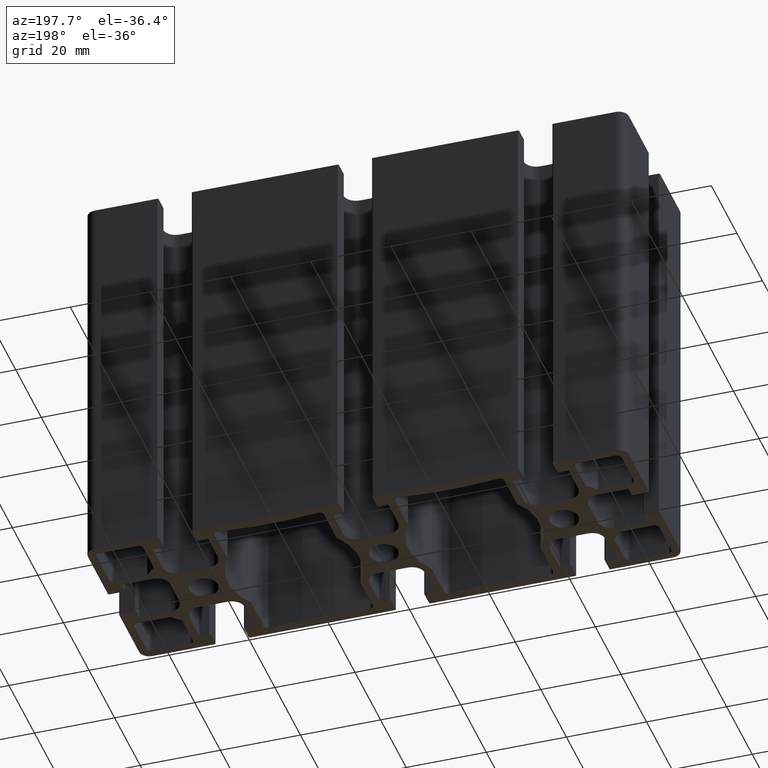
[diagram: clean part render]
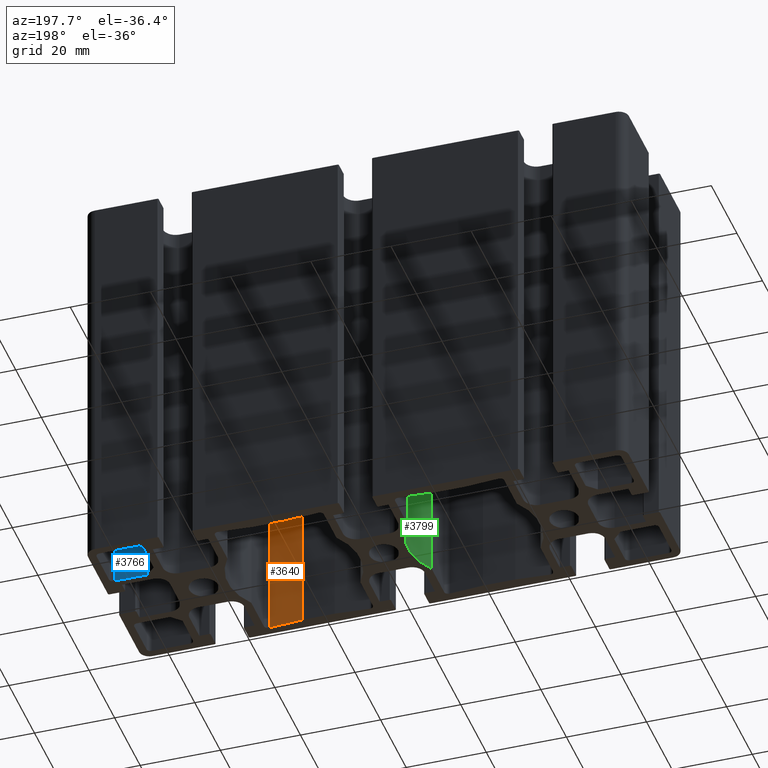
[diagram: same view with three faces highlighted in distinct colors, each labeled with its STEP entity id]
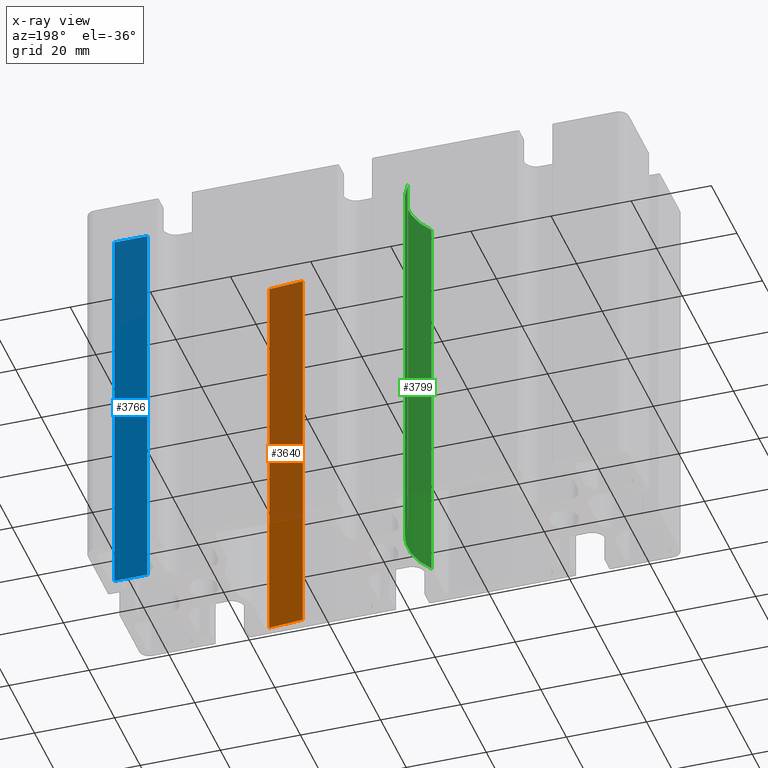
[diagram: x-ray of the same camera — body ghosted, the three highlighted faces saturated]
A machine part, auxiliary view with three faces highlighted in distinct colors.
The next image is the same camera in x-ray (body ghosted, the three faces saturated) — at least one of them is partly hidden behind the body in this view.
Their STEP definitions:

[orange] entity #3640 — the highlighted planar face has unit normal (-0.0767, -0.9971, 0).
#283=FACE_OUTER_BOUND('',#472,.T.);
#472=EDGE_LOOP('',(#2444,#2445,#2446,#2447));
#694=LINE('',#5327,#1094);
#695=LINE('',#5330,#1095);
#696=LINE('',#5332,#1096);
#697=LINE('',#5333,#1097);
#1094=VECTOR('',#4228,100.);
#1095=VECTOR('',#4231,8.54847544709788);
#1096=VECTOR('',#4232,8.54847544709788);
#1097=VECTOR('',#4233,100.);
#1492=VERTEX_POINT('',#5323);
#1493=VERTEX_POINT('',#5325);
#1494=VERTEX_POINT('',#5329);
#1495=VERTEX_POINT('',#5331);
#1876=EDGE_CURVE('',#1493,#1492,#694,.T.);
#1877=EDGE_CURVE('',#1492,#1494,#695,.T.);
#1878=EDGE_CURVE('',#1495,#1493,#696,.T.);
#1879=EDGE_CURVE('',#1495,#1494,#697,.T.);
#2444=ORIENTED_EDGE('',*,*,#1877,.F.);
#2445=ORIENTED_EDGE('',*,*,#1876,.F.);
#2446=ORIENTED_EDGE('',*,*,#1878,.F.);
#2447=ORIENTED_EDGE('',*,*,#1879,.T.);
#3526=PLANE('',#3839);
#3640=ADVANCED_FACE('',(#283),#3526,.F.);
#3839=AXIS2_PLACEMENT_3D('',#5328,#4229,#4230);
#4228=DIRECTION('',(0.,0.,1.));
#4229=DIRECTION('center_axis',(-0.0767190281268195,-0.99705275222692,0.));
#4230=DIRECTION('ref_axis',(0.,0.,-1.));
#4231=DIRECTION('',(-0.99705275222692,0.0767190281268195,0.));
#4232=DIRECTION('',(0.99705275222692,-0.0767190281268195,0.));
#4233=DIRECTION('',(0.,0.,1.));
#5323=CARTESIAN_POINT('',(35.0232809718832,-20.1558307282574,100.));
#5325=CARTESIAN_POINT('',(35.0232809718832,-20.1558307282574,0.));
#5327=CARTESIAN_POINT('',(35.0232809718832,-20.1558307282574,0.));
#5328=CARTESIAN_POINT('Origin',(35.0232809718832,-20.1558307282574,0.));
#5329=CARTESIAN_POINT('',(26.50000000001,-19.49999999999,100.));
#5330=CARTESIAN_POINT('',(16.8438215069739,-18.7569975582935,100.));
#5331=CARTESIAN_POINT('',(26.50000000001,-19.49999999999,0.));
#5332=CARTESIAN_POINT('',(16.8438215069739,-18.7569975582935,0.));
#5333=CARTESIAN_POINT('',(26.50000000001,-19.49999999999,0.));

[blue] entity #3766 — the highlighted planar face has unit normal (0, -1, 0).
#409=FACE_OUTER_BOUND('',#601,.T.);
#601=EDGE_LOOP('',(#2942,#2943,#2944,#2945));
#959=LINE('',#6104,#1359);
#960=LINE('',#6107,#1360);
#961=LINE('',#6109,#1361);
#962=LINE('',#6110,#1362);
#1359=VECTOR('',#4981,100.);
#1360=VECTOR('',#4984,8.26654762208439);
#1361=VECTOR('',#4985,8.26654762208439);
#1362=VECTOR('',#4986,100.);
#1760=VERTEX_POINT('',#6100);
#1761=VERTEX_POINT('',#6102);
#1762=VERTEX_POINT('',#6106);
#1763=VERTEX_POINT('',#6108);
#2259=EDGE_CURVE('',#1761,#1760,#959,.T.);
#2260=EDGE_CURVE('',#1760,#1762,#960,.T.);
#2261=EDGE_CURVE('',#1763,#1761,#961,.T.);
#2262=EDGE_CURVE('',#1763,#1762,#962,.T.);
#2942=ORIENTED_EDGE('',*,*,#2260,.F.);
#2943=ORIENTED_EDGE('',*,*,#2259,.F.);
#2944=ORIENTED_EDGE('',*,*,#2261,.F.);
#2945=ORIENTED_EDGE('',*,*,#2262,.T.);
#3593=PLANE('',#4083);
#3766=ADVANCED_FACE('',(#409),#3593,.F.);
#4083=AXIS2_PLACEMENT_3D('',#6105,#4982,#4983);
#4981=DIRECTION('',(0.,0.,1.));
#4982=DIRECTION('center_axis',(0.,-1.,0.));
#4983=DIRECTION('ref_axis',(0.,0.,-1.));
#4984=DIRECTION('',(-1.,0.,0.));
#4985=DIRECTION('',(1.,0.,0.));
#4986=DIRECTION('',(0.,0.,1.));
#6100=CARTESIAN_POINT('',(64.49999999999,8.89999999999002,100.));
#6102=CARTESIAN_POINT('',(64.49999999999,8.89999999999002,0.));
#6104=CARTESIAN_POINT('',(64.49999999999,8.89999999999002,0.));
#6105=CARTESIAN_POINT('Origin',(64.49999999999,8.89999999999002,0.));
#6106=CARTESIAN_POINT('',(56.2334523779056,8.89999999999002,100.));
#6107=CARTESIAN_POINT('',(32.249999999995,8.89999999999002,100.));
#6108=CARTESIAN_POINT('',(56.2334523779056,8.89999999999002,0.));
#6109=CARTESIAN_POINT('',(32.249999999995,8.89999999999002,0.));
#6110=CARTESIAN_POINT('',(56.2334523779056,8.89999999999002,0.));

[green] entity #3799 — the highlighted cylindrical surface (partial cylindrical patch) has radius 16.5 mm, axis along (0, 0, 1).
#184=CIRCLE('',#4139,16.5);
#185=CIRCLE('',#4140,16.5);
#268=CYLINDRICAL_SURFACE('',#4138,16.5);
#442=FACE_OUTER_BOUND('',#634,.T.);
#634=EDGE_LOOP('',(#3074,#3075,#3076,#3077));
#1035=LINE('',#6301,#1435);
#1037=LINE('',#6307,#1437);
#1435=VECTOR('',#5167,100.);
#1437=VECTOR('',#5173,100.);
#1826=VERTEX_POINT('',#6298);
#1827=VERTEX_POINT('',#6300);
#1828=VERTEX_POINT('',#6304);
#1829=VERTEX_POINT('',#6306);
#2357=EDGE_CURVE('',#1827,#1826,#1035,.T.);
#2359=EDGE_CURVE('',#1828,#1826,#184,.T.);
#2360=EDGE_CURVE('',#1829,#1828,#1037,.T.);
#2361=EDGE_CURVE('',#1827,#1829,#185,.T.);
#3074=ORIENTED_EDGE('',*,*,#2359,.F.);
#3075=ORIENTED_EDGE('',*,*,#2360,.F.);
#3076=ORIENTED_EDGE('',*,*,#2361,.F.);
#3077=ORIENTED_EDGE('',*,*,#2357,.T.);
#3799=ADVANCED_FACE('',(#442),#268,.F.);
#4138=AXIS2_PLACEMENT_3D('',#6303,#5169,#5170);
#4139=AXIS2_PLACEMENT_3D('',#6305,#5171,#5172);
#4140=AXIS2_PLACEMENT_3D('',#6308,#5174,#5175);
#5167=DIRECTION('',(0.,0.,1.));
#5169=DIRECTION('center_axis',(0.,0.,1.));
#5170=DIRECTION('ref_axis',(0.824242424242425,-0.56623707586043,0.));
#5171=DIRECTION('center_axis',(0.,0.,-1.));
#5172=DIRECTION('ref_axis',(0.824242424242425,-0.56623707586043,0.));
#5173=DIRECTION('',(0.,0.,1.));
#5174=DIRECTION('center_axis',(0.,0.,1.));
#5175=DIRECTION('ref_axis',(0.824242424242425,-0.56623707586043,0.));
#6298=CARTESIAN_POINT('',(-8.90000000000998,-9.34291175169711,100.));
#6300=CARTESIAN_POINT('',(-8.90000000000998,-9.34291175169711,0.));
#6301=CARTESIAN_POINT('',(-8.90000000000998,-9.34291175169711,0.));
#6303=CARTESIAN_POINT('Origin',(-22.50000000001,-2.7433184895085E-15,0.));
#6304=CARTESIAN_POINT('',(-8.90000000000997,9.3429117516971,100.));
#6305=CARTESIAN_POINT('Origin',(-22.50000000001,-2.7433184895085E-15,100.));
#6306=CARTESIAN_POINT('',(-8.90000000000997,9.3429117516971,0.));
#6307=CARTESIAN_POINT('',(-8.90000000000997,9.3429117516971,0.));
#6308=CARTESIAN_POINT('Origin',(-22.50000000001,-2.7433184895085E-15,0.));